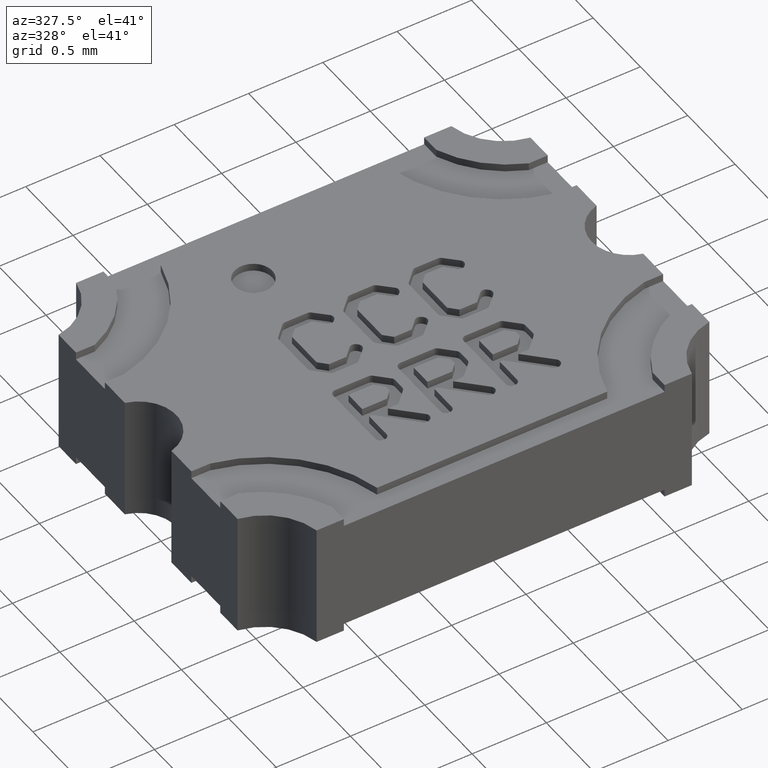
[diagram: clean part render]
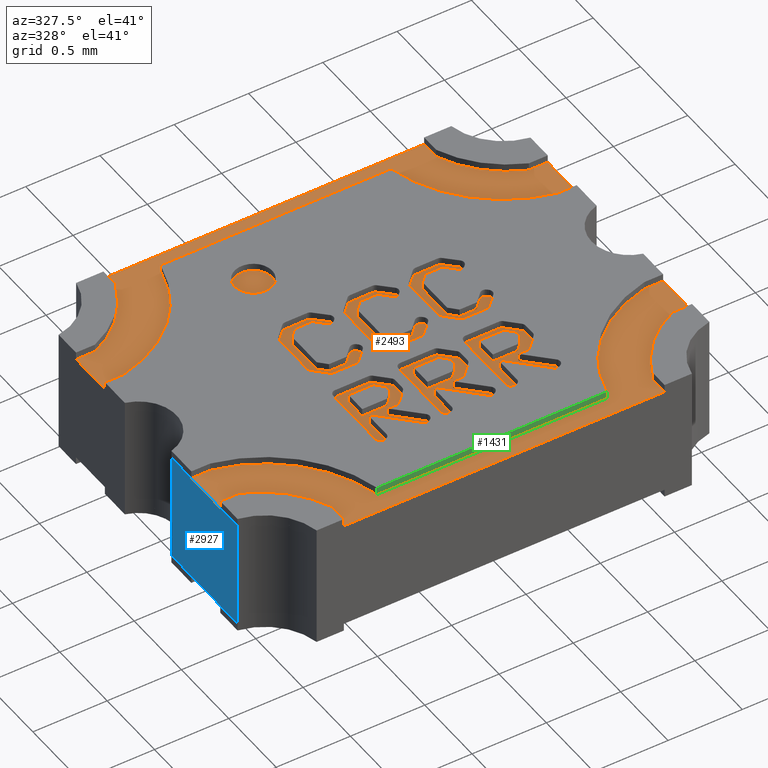
[diagram: same view with three faces highlighted in distinct colors, each labeled with its STEP entity id]
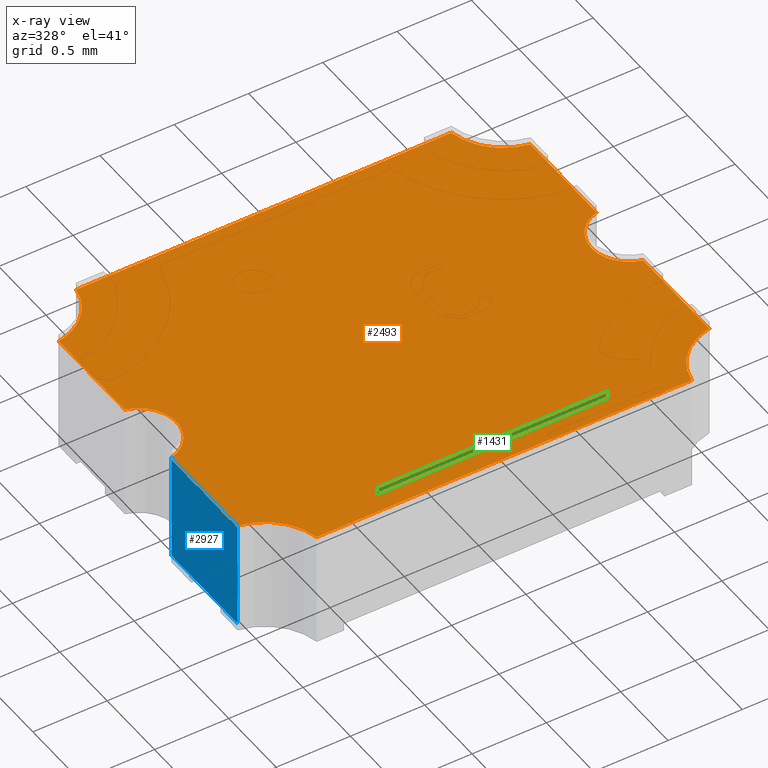
[diagram: x-ray of the same camera — body ghosted, the three highlighted faces saturated]
A machine part, auxiliary view with three faces highlighted in distinct colors.
The next image is the same camera in x-ray (body ghosted, the three faces saturated) — at least one of them is partly hidden behind the body in this view.
Their STEP definitions:

[orange] entity #2493 — the highlighted planar face has unit normal (0, 0, 1).
#125 = ORIENTED_EDGE ( 'NONE', *, *, #5003, .F. ) ;
#345 = LINE ( 'NONE', #1741, #3726 ) ;
#486 = AXIS2_PLACEMENT_3D ( 'NONE', #3978, #5518, #3186 ) ;
#565 = DIRECTION ( 'NONE',  ( 1.000000000000000000, 0.000000000000000000, 0.000000000000000000 ) ) ;
#621 = CARTESIAN_POINT ( 'NONE',  ( 0.06500000000204800288, 0.05250000000024985375, 0.03100000000000000325 ) ) ;
#727 = CARTESIAN_POINT ( 'NONE',  ( -0.04970294146126894713, -0.04999999999976832699, 0.03100000000000000325 ) ) ;
#747 = EDGE_CURVE ( 'NONE', #6669, #1251, #8553, .T. ) ;
#796 = ORIENTED_EDGE ( 'NONE', *, *, #8973, .F. ) ;
#929 = VERTEX_POINT ( 'NONE', #2425 ) ;
#963 = EDGE_CURVE ( 'NONE', #6226, #4815, #2288, .T. ) ;
#987 = CARTESIAN_POINT ( 'NONE',  ( -0.06250000000204736228, -0.009682458352590064474, 0.03100000000000000325 ) ) ;
#1129 = ORIENTED_EDGE ( 'NONE', *, *, #6483, .F. ) ;
#1159 = CARTESIAN_POINT ( 'NONE',  ( 0.06250000000204793127, 0.03720294145947151271, 0.03100000000000000325 ) ) ;
#1251 = VERTEX_POINT ( 'NONE', #5603 ) ;
#1348 = PLANE ( 'NONE',  #2442 ) ;
#1356 = DIRECTION ( 'NONE',  ( 0.000000000000000000, -1.000000000000000000, 0.000000000000000000 ) ) ;
#1580 = CARTESIAN_POINT ( 'NONE',  ( 0.05499999999999809208, 1.345686683476072434E-11, 0.03100000000000000325 ) ) ;
#1678 = ORIENTED_EDGE ( 'NONE', *, *, #8015, .F. ) ;
#1704 = CIRCLE ( 'NONE', #7528, 0.009999999999999988065 ) ;
#1741 = CARTESIAN_POINT ( 'NONE',  ( 0.06250000000204798678, -0.05249999999976831533, 0.03100000000000000325 ) ) ;
#1803 = ORIENTED_EDGE ( 'NONE', *, *, #6979, .F. ) ;
#1923 = CARTESIAN_POINT ( 'NONE',  ( 0.06500000000204800288, 0.05000000000024985153, 0.03100000000000000325 ) ) ;
#1925 = LINE ( 'NONE', #8280, #4066 ) ;
#1931 = CIRCLE ( 'NONE', #7163, 0.01549999999999998601 ) ;
#2003 = ORIENTED_EDGE ( 'NONE', *, *, #747, .F. ) ;
#2007 = CARTESIAN_POINT ( 'NONE',  ( -0.06500000000000093203, 1.345686125414067590E-11, 0.03100000000000000325 ) ) ;
#2096 = AXIS2_PLACEMENT_3D ( 'NONE', #7864, #4176, #7816 ) ;
#2243 = CARTESIAN_POINT ( 'NONE',  ( 0.06500000000204800288, -0.04999999999976832699, 0.03100000000000000325 ) ) ;
#2247 = CARTESIAN_POINT ( 'NONE',  ( 0.04970294146126964796, 0.05000000000024985847, 0.03100000000000000325 ) ) ;
#2278 = VERTEX_POINT ( 'NONE', #1159 ) ;
#2288 = LINE ( 'NONE', #2243, #3669 ) ;
#2348 = CARTESIAN_POINT ( 'NONE',  ( -0.06250000000204736228, 0.009682458379503787460, 0.03100000000000000325 ) ) ;
#2425 = CARTESIAN_POINT ( 'NONE',  ( -0.06250000000204736228, 0.03720294145947148495, 0.03100000000000000325 ) ) ;
#2442 = AXIS2_PLACEMENT_3D ( 'NONE', #2007, #4206, #3506 ) ;
#2493 = ADVANCED_FACE ( 'NONE', ( #4338 ), #1348, .T. ) ;
#2538 = AXIS2_PLACEMENT_3D ( 'NONE', #6234, #3388, #4688 ) ;
#2804 = CARTESIAN_POINT ( 'NONE',  ( 0.06500000000204800288, -0.05249999999976831533, 0.03100000000000000325 ) ) ;
#3016 = ORIENTED_EDGE ( 'NONE', *, *, #3771, .F. ) ;
#3161 = VERTEX_POINT ( 'NONE', #9197 ) ;
#3186 = DIRECTION ( 'NONE',  ( 1.000000000000000000, 0.000000000000000000, 0.000000000000000000 ) ) ;
#3291 = VECTOR ( 'NONE', #8277, 39.37007874015748143 ) ;
#3388 = DIRECTION ( 'NONE',  ( 0.000000000000000000, 0.000000000000000000, 1.000000000000000000 ) ) ;
#3447 = CIRCLE ( 'NONE', #8665, 0.01549999999999999468 ) ;
#3506 = DIRECTION ( 'NONE',  ( 1.000000000000000000, 0.000000000000000000, -0.000000000000000000 ) ) ;
#3605 = VERTEX_POINT ( 'NONE', #5771 ) ;
#3643 = DIRECTION ( 'NONE',  ( 0.000000000000000000, 0.000000000000000000, 1.000000000000000000 ) ) ;
#3669 = VECTOR ( 'NONE', #5093, 39.37007874015748143 ) ;
#3702 = LINE ( 'NONE', #5903, #3736 ) ;
#3715 = VERTEX_POINT ( 'NONE', #987 ) ;
#3726 = VECTOR ( 'NONE', #6002, 39.37007874015748143 ) ;
#3736 = VECTOR ( 'NONE', #5243, 39.37007874015748143 ) ;
#3771 = EDGE_CURVE ( 'NONE', #5896, #929, #1925, .T. ) ;
#3961 = DIRECTION ( 'NONE',  ( 1.000000000000000000, 0.000000000000000000, 0.000000000000000000 ) ) ;
#3978 = CARTESIAN_POINT ( 'NONE',  ( 0.06499999999999807321, 1.345686683476072434E-11, 0.03100000000000000325 ) ) ;
#4027 = VERTEX_POINT ( 'NONE', #2247 ) ;
#4066 = VECTOR ( 'NONE', #7621, 39.37007874015748143 ) ;
#4176 = DIRECTION ( 'NONE',  ( 0.000000000000000000, 0.000000000000000000, 1.000000000000000000 ) ) ;
#4188 = ORIENTED_EDGE ( 'NONE', *, *, #5984, .F. ) ;
#4206 = DIRECTION ( 'NONE',  ( 0.000000000000000000, 0.000000000000000000, 1.000000000000000000 ) ) ;
#4338 = FACE_OUTER_BOUND ( 'NONE', #7491, .T. ) ;
#4428 = ORIENTED_EDGE ( 'NONE', *, *, #6138, .F. ) ;
#4606 = ORIENTED_EDGE ( 'NONE', *, *, #963, .F. ) ;
#4688 = DIRECTION ( 'NONE',  ( 1.000000000000000000, 0.000000000000000000, 0.000000000000000000 ) ) ;
#4815 = VERTEX_POINT ( 'NONE', #727 ) ;
#5003 = EDGE_CURVE ( 'NONE', #1251, #3161, #345, .T. ) ;
#5012 = DIRECTION ( 'NONE',  ( 0.000000000000000000, 0.000000000000000000, 1.000000000000000000 ) ) ;
#5093 = DIRECTION ( 'NONE',  ( -1.000000000000000000, 0.000000000000000000, 0.000000000000000000 ) ) ;
#5238 = CARTESIAN_POINT ( 'NONE',  ( 0.04970294146126964796, -0.04999999999976832699, 0.03100000000000000325 ) ) ;
#5243 = DIRECTION ( 'NONE',  ( 0.000000000000000000, 1.000000000000000000, 0.000000000000000000 ) ) ;
#5428 = LINE ( 'NONE', #1923, #3291 ) ;
#5518 = DIRECTION ( 'NONE',  ( 0.000000000000000000, 0.000000000000000000, 1.000000000000000000 ) ) ;
#5603 = CARTESIAN_POINT ( 'NONE',  ( 0.06250000000204798678, -0.009682458352590952652, 0.03100000000000000325 ) ) ;
#5621 = EDGE_CURVE ( 'NONE', #3161, #6226, #1931, .T. ) ;
#5724 = VERTEX_POINT ( 'NONE', #8112 ) ;
#5771 = CARTESIAN_POINT ( 'NONE',  ( -0.04970294146126894713, 0.05000000000024985153, 0.03100000000000000325 ) ) ;
#5896 = VERTEX_POINT ( 'NONE', #2348 ) ;
#5903 = CARTESIAN_POINT ( 'NONE',  ( -0.06250000000204736228, -0.05249999999976831533, 0.03100000000000000325 ) ) ;
#5963 = CIRCLE ( 'NONE', #2538, 0.01549999999999999468 ) ;
#5984 = EDGE_CURVE ( 'NONE', #929, #3605, #5963, .T. ) ;
#6002 = DIRECTION ( 'NONE',  ( 0.000000000000000000, -1.000000000000000000, 0.000000000000000000 ) ) ;
#6138 = EDGE_CURVE ( 'NONE', #3715, #5896, #6713, .T. ) ;
#6226 = VERTEX_POINT ( 'NONE', #5238 ) ;
#6234 = CARTESIAN_POINT ( 'NONE',  ( -0.06500000000204730899, 0.05250000000024984681, 0.03100000000000000325 ) ) ;
#6271 = ORIENTED_EDGE ( 'NONE', *, *, #6544, .F. ) ;
#6321 = DIRECTION ( 'NONE',  ( 0.000000000000000000, 0.000000000000000000, 1.000000000000000000 ) ) ;
#6405 = LINE ( 'NONE', #6452, #8420 ) ;
#6452 = CARTESIAN_POINT ( 'NONE',  ( 0.06250000000204793127, -0.05249999999976831533, 0.03100000000000000325 ) ) ;
#6483 = EDGE_CURVE ( 'NONE', #3605, #4027, #5428, .T. ) ;
#6493 = DIRECTION ( 'NONE',  ( 1.000000000000000000, 0.000000000000000000, 0.000000000000000000 ) ) ;
#6538 = EDGE_CURVE ( 'NONE', #4815, #8037, #6722, .T. ) ;
#6544 = EDGE_CURVE ( 'NONE', #4027, #2278, #3447, .T. ) ;
#6669 = VERTEX_POINT ( 'NONE', #1580 ) ;
#6713 = CIRCLE ( 'NONE', #2096, 0.009999999999999995004 ) ;
#6722 = CIRCLE ( 'NONE', #7461, 0.01549999999999999468 ) ;
#6979 = EDGE_CURVE ( 'NONE', #5724, #6669, #1704, .T. ) ;
#7163 = AXIS2_PLACEMENT_3D ( 'NONE', #2804, #3643, #6493 ) ;
#7461 = AXIS2_PLACEMENT_3D ( 'NONE', #8411, #5012, #565 ) ;
#7491 = EDGE_LOOP ( 'NONE', ( #796, #8406, #4606, #7800, #125, #2003, #1803, #1678, #6271, #1129, #4188, #3016, #4428 ) ) ;
#7528 = AXIS2_PLACEMENT_3D ( 'NONE', #8349, #9051, #3961 ) ;
#7621 = DIRECTION ( 'NONE',  ( 0.000000000000000000, 1.000000000000000000, 0.000000000000000000 ) ) ;
#7800 = ORIENTED_EDGE ( 'NONE', *, *, #5621, .F. ) ;
#7816 = DIRECTION ( 'NONE',  ( 1.000000000000000000, 0.000000000000000000, 0.000000000000000000 ) ) ;
#7864 = CARTESIAN_POINT ( 'NONE',  ( -0.06500000000000093203, 1.345686125414067590E-11, 0.03100000000000000325 ) ) ;
#7937 = CARTESIAN_POINT ( 'NONE',  ( -0.06250000000204736228, -0.03720294145898995347, 0.03100000000000000325 ) ) ;
#8015 = EDGE_CURVE ( 'NONE', #2278, #5724, #6405, .T. ) ;
#8037 = VERTEX_POINT ( 'NONE', #7937 ) ;
#8112 = CARTESIAN_POINT ( 'NONE',  ( 0.06250000000204793127, 0.009682458379504668700, 0.03100000000000000325 ) ) ;
#8277 = DIRECTION ( 'NONE',  ( 1.000000000000000000, 0.000000000000000000, -0.000000000000000000 ) ) ;
#8280 = CARTESIAN_POINT ( 'NONE',  ( -0.06250000000204736228, -0.05249999999976831533, 0.03100000000000000325 ) ) ;
#8349 = CARTESIAN_POINT ( 'NONE',  ( 0.06499999999999807321, 1.345686683476072434E-11, 0.03100000000000000325 ) ) ;
#8406 = ORIENTED_EDGE ( 'NONE', *, *, #6538, .F. ) ;
#8411 = CARTESIAN_POINT ( 'NONE',  ( -0.06500000000204730899, -0.05249999999976831533, 0.03100000000000000325 ) ) ;
#8420 = VECTOR ( 'NONE', #1356, 39.37007874015748143 ) ;
#8553 = CIRCLE ( 'NONE', #486, 0.009999999999999988065 ) ;
#8665 = AXIS2_PLACEMENT_3D ( 'NONE', #621, #6321, #9162 ) ;
#8973 = EDGE_CURVE ( 'NONE', #8037, #3715, #3702, .T. ) ;
#9051 = DIRECTION ( 'NONE',  ( 0.000000000000000000, 0.000000000000000000, 1.000000000000000000 ) ) ;
#9162 = DIRECTION ( 'NONE',  ( 1.000000000000000000, 0.000000000000000000, 0.000000000000000000 ) ) ;
#9197 = CARTESIAN_POINT ( 'NONE',  ( 0.06250000000204798678, -0.03720294145898997429, 0.03100000000000000325 ) ) ;

[blue] entity #2927 — the highlighted planar face has unit normal (-1, 0, 0).
#99 = CARTESIAN_POINT ( 'NONE',  ( -0.06250000000204736228, -0.009682458352590064474, 0.002000000000000000042 ) ) ;
#275 = CARTESIAN_POINT ( 'NONE',  ( -0.06250000000204736228, -0.03720294145898995347, 0.002000000000000000042 ) ) ;
#583 = DIRECTION ( 'NONE',  ( 0.000000000000000000, 1.000000000000000000, 0.000000000000000000 ) ) ;
#731 = DIRECTION ( 'NONE',  ( -0.000000000000000000, -0.000000000000000000, -1.000000000000000000 ) ) ;
#987 = CARTESIAN_POINT ( 'NONE',  ( -0.06250000000204736228, -0.009682458352590064474, 0.03100000000000000325 ) ) ;
#1158 = FACE_OUTER_BOUND ( 'NONE', #1368, .T. ) ;
#1368 = EDGE_LOOP ( 'NONE', ( #7812, #7371, #8504, #7351 ) ) ;
#1434 = LINE ( 'NONE', #7139, #8663 ) ;
#1640 = VECTOR ( 'NONE', #583, 39.37007874015748143 ) ;
#2108 = AXIS2_PLACEMENT_3D ( 'NONE', #5505, #9057, #4064 ) ;
#2826 = CARTESIAN_POINT ( 'NONE',  ( -0.06250000000204736228, -0.03720294145898995347, 0.03100000000000000325 ) ) ;
#2927 = ADVANCED_FACE ( 'NONE', ( #1158 ), #3875, .T. ) ;
#3426 = VECTOR ( 'NONE', #6287, 39.37007874015748143 ) ;
#3702 = LINE ( 'NONE', #5903, #3736 ) ;
#3715 = VERTEX_POINT ( 'NONE', #987 ) ;
#3736 = VECTOR ( 'NONE', #5243, 39.37007874015748143 ) ;
#3875 = PLANE ( 'NONE',  #2108 ) ;
#3946 = VERTEX_POINT ( 'NONE', #99 ) ;
#4064 = DIRECTION ( 'NONE',  ( 0.000000000000000000, 0.000000000000000000, 1.000000000000000000 ) ) ;
#4927 = LINE ( 'NONE', #2826, #3426 ) ;
#5117 = EDGE_CURVE ( 'NONE', #8037, #5350, #4927, .T. ) ;
#5243 = DIRECTION ( 'NONE',  ( 0.000000000000000000, 1.000000000000000000, 0.000000000000000000 ) ) ;
#5350 = VERTEX_POINT ( 'NONE', #275 ) ;
#5505 = CARTESIAN_POINT ( 'NONE',  ( -0.06250000000204736228, -0.05249999999976831533, 0.03100000000000000325 ) ) ;
#5903 = CARTESIAN_POINT ( 'NONE',  ( -0.06250000000204736228, -0.05249999999976831533, 0.03100000000000000325 ) ) ;
#6287 = DIRECTION ( 'NONE',  ( -0.000000000000000000, -0.000000000000000000, -1.000000000000000000 ) ) ;
#6987 = LINE ( 'NONE', #7870, #1640 ) ;
#7139 = CARTESIAN_POINT ( 'NONE',  ( -0.06250000000204736228, -0.009682458352590064474, 0.03100000000000000325 ) ) ;
#7351 = ORIENTED_EDGE ( 'NONE', *, *, #8477, .T. ) ;
#7371 = ORIENTED_EDGE ( 'NONE', *, *, #5117, .F. ) ;
#7812 = ORIENTED_EDGE ( 'NONE', *, *, #8825, .F. ) ;
#7870 = CARTESIAN_POINT ( 'NONE',  ( -0.06250000000204736228, -0.05249999999976831533, 0.002000000000000000042 ) ) ;
#7937 = CARTESIAN_POINT ( 'NONE',  ( -0.06250000000204736228, -0.03720294145898995347, 0.03100000000000000325 ) ) ;
#8037 = VERTEX_POINT ( 'NONE', #7937 ) ;
#8477 = EDGE_CURVE ( 'NONE', #3715, #3946, #1434, .T. ) ;
#8504 = ORIENTED_EDGE ( 'NONE', *, *, #8973, .T. ) ;
#8663 = VECTOR ( 'NONE', #731, 39.37007874015748143 ) ;
#8825 = EDGE_CURVE ( 'NONE', #5350, #3946, #6987, .T. ) ;
#8973 = EDGE_CURVE ( 'NONE', #8037, #3715, #3702, .T. ) ;
#9057 = DIRECTION ( 'NONE',  ( -1.000000000000000000, 0.000000000000000000, 0.000000000000000000 ) ) ;

[green] entity #1431 — the highlighted planar face has unit normal (0, -1, 0).
#1311 = LINE ( 'NONE', #2118, #7346 ) ;
#1431 = ADVANCED_FACE ( 'NONE', ( #5481 ), #1838, .T. ) ;
#1756 = AXIS2_PLACEMENT_3D ( 'NONE', #1983, #4877, #9130 ) ;
#1838 = PLANE ( 'NONE',  #1756 ) ;
#1983 = CARTESIAN_POINT ( 'NONE',  ( -0.06500000000000091815, -0.04499419436372818770, 0.03100000000000000325 ) ) ;
#2118 = CARTESIAN_POINT ( 'NONE',  ( -0.06500000000000091815, -0.04499419436372818770, 0.03100000000000000325 ) ) ;
#2162 = DIRECTION ( 'NONE',  ( 1.000000000000000000, 1.399512291785828906E-16, -0.000000000000000000 ) ) ;
#2536 = VECTOR ( 'NONE', #6153, 39.37007874015748143 ) ;
#2601 = VERTEX_POINT ( 'NONE', #4422 ) ;
#2820 = LINE ( 'NONE', #5062, #3586 ) ;
#3586 = VECTOR ( 'NONE', #5022, 39.37007874015748143 ) ;
#3691 = ORIENTED_EDGE ( 'NONE', *, *, #8200, .T. ) ;
#3925 = EDGE_CURVE ( 'NONE', #9147, #4805, #1311, .T. ) ;
#4005 = CARTESIAN_POINT ( 'NONE',  ( 0.03050000000132902997, -0.04499419436372816689, 0.03100000000000000325 ) ) ;
#4422 = CARTESIAN_POINT ( 'NONE',  ( 0.03050000000132902997, -0.04499419436372816689, 0.03300000000000000155 ) ) ;
#4424 = ORIENTED_EDGE ( 'NONE', *, *, #8646, .F. ) ;
#4805 = VERTEX_POINT ( 'NONE', #9142 ) ;
#4877 = DIRECTION ( 'NONE',  ( 1.399512291785828906E-16, -1.000000000000000000, 0.000000000000000000 ) ) ;
#4954 = EDGE_LOOP ( 'NONE', ( #5063, #4424, #7553, #3691 ) ) ;
#4991 = VECTOR ( 'NONE', #9007, 39.37007874015748143 ) ;
#5022 = DIRECTION ( 'NONE',  ( 1.000000000000000000, 1.399512291785828906E-16, -0.000000000000000000 ) ) ;
#5062 = CARTESIAN_POINT ( 'NONE',  ( -0.06500000000000091815, -0.04499419436372818770, 0.03300000000000000155 ) ) ;
#5063 = ORIENTED_EDGE ( 'NONE', *, *, #6126, .F. ) ;
#5481 = FACE_OUTER_BOUND ( 'NONE', #4954, .T. ) ;
#6126 = EDGE_CURVE ( 'NONE', #7196, #2601, #2820, .T. ) ;
#6153 = DIRECTION ( 'NONE',  ( -0.000000000000000000, -0.000000000000000000, 1.000000000000000000 ) ) ;
#6466 = CARTESIAN_POINT ( 'NONE',  ( -0.03050000000086650065, -0.04499419436372817382, 0.03100000000000000325 ) ) ;
#7196 = VERTEX_POINT ( 'NONE', #8486 ) ;
#7346 = VECTOR ( 'NONE', #2162, 39.37007874015748143 ) ;
#7553 = ORIENTED_EDGE ( 'NONE', *, *, #3925, .T. ) ;
#7596 = LINE ( 'NONE', #4005, #4991 ) ;
#7684 = CARTESIAN_POINT ( 'NONE',  ( -0.03050000000086650065, -0.04499419436372817382, 0.03100000000000000325 ) ) ;
#8200 = EDGE_CURVE ( 'NONE', #4805, #2601, #7596, .T. ) ;
#8295 = LINE ( 'NONE', #7684, #2536 ) ;
#8486 = CARTESIAN_POINT ( 'NONE',  ( -0.03050000000086650065, -0.04499419436372817382, 0.03300000000000000155 ) ) ;
#8646 = EDGE_CURVE ( 'NONE', #9147, #7196, #8295, .T. ) ;
#9007 = DIRECTION ( 'NONE',  ( -0.000000000000000000, -0.000000000000000000, 1.000000000000000000 ) ) ;
#9130 = DIRECTION ( 'NONE',  ( 1.000000000000000000, 1.399512291785828906E-16, 0.000000000000000000 ) ) ;
#9142 = CARTESIAN_POINT ( 'NONE',  ( 0.03050000000132902997, -0.04499419436372816689, 0.03100000000000000325 ) ) ;
#9147 = VERTEX_POINT ( 'NONE', #6466 ) ;